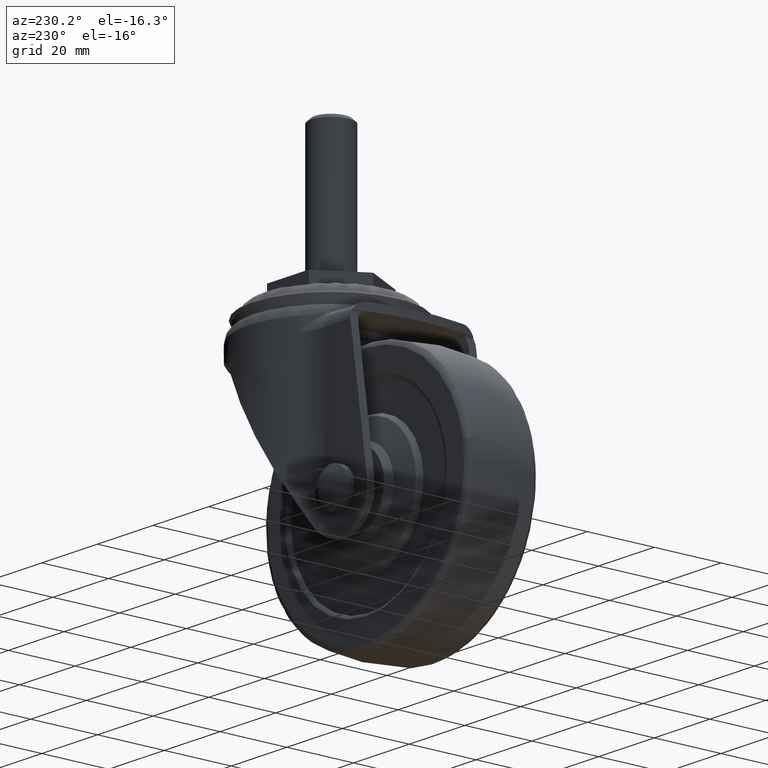
[diagram: clean part render]
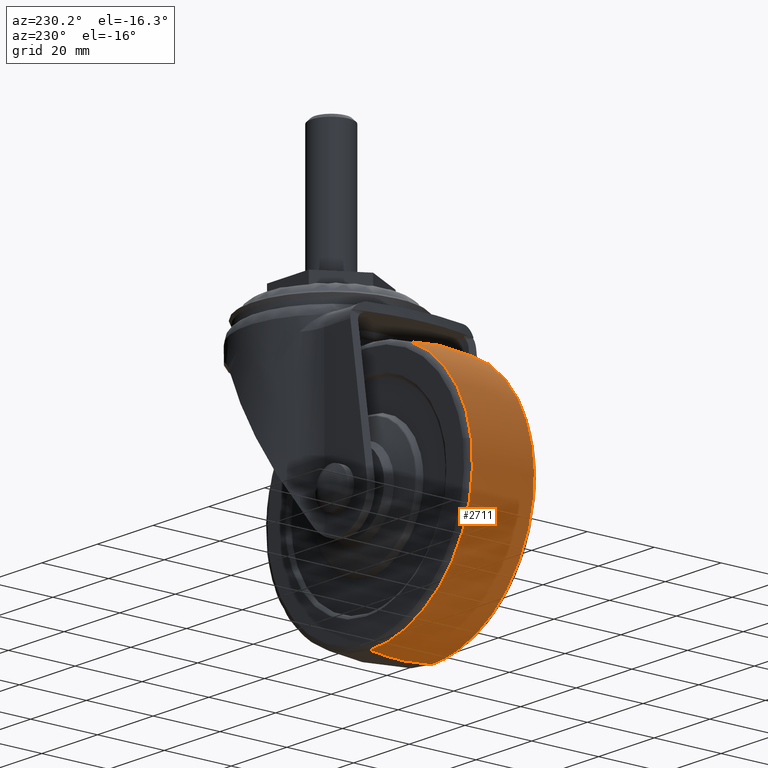
[diagram: same view with one face highlighted and labeled with its STEP entity id]
A machine part, auxiliary view. The second image highlights one B-rep face of the part: STEP entity #2711.
In plain terms, the highlighted face is a freeform B-spline surface patch.
Its self-contained STEP definition (entity closure, byte-faithful):
#2379=CARTESIAN_POINT('',(-61.434806249780827,-9.230763420443569,-54.568675097718327));
#2380=VERTEX_POINT('',#2379);
#2391=CARTESIAN_POINT('',(-25.0,-9.230763351864182,-86.285654018669007));
#2392=VERTEX_POINT('',#2391);
#2393=CARTESIAN_POINT('',(-61.434806249780827,-9.230763420443569,-54.568675097718327));
#2394=CARTESIAN_POINT('',(-61.066558056080908,-9.230763417578658,-57.219319311157811));
#2395=CARTESIAN_POINT('',(-59.967253715297758,-9.230763412347150,-61.569237485760787));
#2396=CARTESIAN_POINT('',(-57.705242909943330,-9.230763405318418,-66.511284154733161));
#2397=CARTESIAN_POINT('',(-55.582828927102383,-9.230763399754052,-70.042771539033069));
#2398=CARTESIAN_POINT('',(-53.132725579667792,-9.230763394039030,-73.359413618157362));
#2399=CARTESIAN_POINT('',(-49.702347436691163,-9.230763387034699,-76.932899054251379));
#2400=CARTESIAN_POINT('',(-45.681383052744089,-9.230763379818255,-80.055594263378140));
#2401=CARTESIAN_POINT('',(-40.984589056349492,-9.230763372246765,-82.782583618359482));
#2402=CARTESIAN_POINT('',(-36.503204389630042,-9.230763365790486,-84.560705348715942));
#2403=CARTESIAN_POINT('',(-30.969575609066720,-9.230763358583657,-85.934930057880521));
#2404=CARTESIAN_POINT('',(-27.401626426469470,-9.230763354435826,-86.285967735997033));
#2405=CARTESIAN_POINT('',(-25.0,-9.230763351864182,-86.285654018669007));
#2406=B_SPLINE_CURVE_WITH_KNOTS('',3,(#2393,#2394,#2395,#2396,#2397,#2398,#2399,#2400,#2401,#2402,#2403,#2404,#2405),.UNSPECIFIED.,.F.,.U.,(4,1,1,1,1,1,1,1,1,1,4),(0.000000052981221,8.028191636714098,13.380353692767510,16.262282188954980,20.379314419132140,25.731476932709811,31.083556725654539,35.612317630468482,41.993725724533853,45.493205887227973,52.698006034466090),.UNSPECIFIED.);
#2407=EDGE_CURVE('',#2380,#2392,#2406,.T.);
#2477=CARTESIAN_POINT('',(-25.0,-9.230763351852319,-12.714274538763419));
#2478=VERTEX_POINT('',#2477);
#2496=CARTESIAN_POINT('',(-25.0,-9.230763351852319,-12.714274538763419));
#2497=CARTESIAN_POINT('',(-26.637174524403051,-9.230763353180846,-12.714225470905870));
#2498=CARTESIAN_POINT('',(-30.157095759941949,-9.230763356256764,-12.949614562330989));
#2499=CARTESIAN_POINT('',(-35.857903342420023,-9.230763362017319,-14.166155541446100));
#2500=CARTESIAN_POINT('',(-41.125053841733930,-9.230763368256227,-16.273228854026009));
#2501=CARTESIAN_POINT('',(-45.571955354403137,-9.230763374317153,-18.903340478526658));
#2502=CARTESIAN_POINT('',(-48.637614891250962,-9.230763378982088,-21.238244195400519));
#2503=CARTESIAN_POINT('',(-51.340808511290767,-9.230763383512741,-23.744974196551588));
#2504=CARTESIAN_POINT('',(-54.401111016135232,-9.230763389187054,-27.166779111185068));
#2505=CARTESIAN_POINT('',(-57.432694475577897,-9.230763395934721,-31.766042698238390));
#2506=CARTESIAN_POINT('',(-59.604965298729127,-9.230763402326828,-36.730235279955082));
#2507=CARTESIAN_POINT('',(-61.037061371883432,-9.230763408034415,-41.605913113921517));
#2508=CARTESIAN_POINT('',(-61.940352142548633,-9.230763414138558,-47.366168512796662));
#2509=CARTESIAN_POINT('',(-61.796127475761359,-9.230763418317473,-51.974215540793402));
#2510=CARTESIAN_POINT('',(-61.434806249780827,-9.230763420443569,-54.568675097718327));
#2511=B_SPLINE_CURVE_WITH_KNOTS('',3,(#2496,#2497,#2498,#2499,#2500,#2501,#2502,#2503,#2504,#2505,#2506,#2507,#2508,#2509,#2510),.UNSPECIFIED.,.F.,.U.,(4,1,1,1,1,1,1,1,1,1,1,1,4),(0.000000047486211,4.911534404475411,10.559816091448219,17.436007203352201,21.856416106861811,26.031221011822112,28.978186368435669,32.907346866115439,39.783548789364993,45.431825931511291,49.115494490843730,55.009378928081283,62.867831224666730),.UNSPECIFIED.);
#2512=EDGE_CURVE('',#2478,#2380,#2511,.T.);
#2561=CARTESIAN_POINT('',(-25.0,9.230742634601860,-86.285657244330764));
#2562=VERTEX_POINT('',#2561);
#2563=CARTESIAN_POINT('',(-25.0,-9.230763351864182,-86.285654018669007));
#2564=CARTESIAN_POINT('',(-24.999999999999972,-6.273756534309167,-86.746244877910271));
#2565=CARTESIAN_POINT('',(-25.000000000000071,-0.097700543940877,-87.238805364168613));
#2566=CARTESIAN_POINT('',(-24.999999999999989,6.082969964540927,-86.775998838194539));
#2567=CARTESIAN_POINT('',(-25.0,9.230742634601860,-86.285657244330764));
#2568=B_SPLINE_CURVE_WITH_KNOTS('',3,(#2563,#2564,#2565,#2566,#2567),.UNSPECIFIED.,.F.,.U.,(4,1,4),(1.987228E-009,8.977964132629275,18.535136944959280),.UNSPECIFIED.);
#2569=EDGE_CURVE('',#2392,#2562,#2568,.T.);
#2590=CARTESIAN_POINT('',(-25.0,9.230742634547582,-12.714271313095070));
#2591=VERTEX_POINT('',#2590);
#2612=CARTESIAN_POINT('',(-25.0,-9.230763351852319,-12.714274538763419));
#2613=CARTESIAN_POINT('',(-25.000000000000011,-5.892220371566760,-12.194166089081950));
#2614=CARTESIAN_POINT('',(-25.000000000000021,0.293058294882455,-11.761106902123011));
#2615=CARTESIAN_POINT('',(-24.999999999999950,6.464505866316229,-12.283462166074109));
#2616=CARTESIAN_POINT('',(-25.0,9.230742634547582,-12.714271313095070));
#2617=B_SPLINE_CURVE_WITH_KNOTS('',3,(#2612,#2613,#2614,#2615,#2616),.UNSPECIFIED.,.F.,.U.,(4,1,4),(1.985622E-009,10.136394978925180,18.535136944892351),.UNSPECIFIED.);
#2618=EDGE_CURVE('',#2478,#2591,#2617,.T.);
#2625=CARTESIAN_POINT('',(-23.975864831887243,-10.163918936312214,-12.867107491174105));
#2626=CARTESIAN_POINT('',(-23.951622336555303,-5.118949990986023,-11.999964278717140));
#2627=CARTESIAN_POINT('',(-23.951622336555307,5.694446E-015,-11.999964278717135));
#2628=CARTESIAN_POINT('',(-23.951622336555310,5.118941571733993,-11.999964278717137));
#2629=CARTESIAN_POINT('',(-23.975864752719204,10.163902461083874,-12.867104659368664));
#2630=CARTESIAN_POINT('',(-24.484950262534955,-10.163918936312216,-12.867107491174110));
#2631=CARTESIAN_POINT('',(-24.472758423757245,-5.118949990986023,-11.999964278717144));
#2632=CARTESIAN_POINT('',(-24.472758423757245,5.694446E-015,-11.999964278717142));
#2633=CARTESIAN_POINT('',(-24.472758423757242,5.118941571733992,-11.999964278717133));
#2634=CARTESIAN_POINT('',(-24.484950222720403,10.163902461083875,-12.867104659368668));
#2635=CARTESIAN_POINT('',(-61.632856787543027,-10.163918936312212,-12.867107491174110));
#2636=CARTESIAN_POINT('',(-62.499999999999993,-5.118949990986022,-11.999964278717142));
#2637=CARTESIAN_POINT('',(-62.500000000000000,5.694446E-015,-11.999964278717139));
#2638=CARTESIAN_POINT('',(-62.500000000000007,5.118941571733994,-11.999964278717144));
#2639=CARTESIAN_POINT('',(-61.632859619348466,10.163902461083874,-12.867104659368668));
#2640=CARTESIAN_POINT('',(-61.632856787543034,-10.163918936312214,-49.499964278717130));
#2641=CARTESIAN_POINT('',(-62.499999999999993,-5.118949990986023,-49.499964278717137));
#2642=CARTESIAN_POINT('',(-62.500000000000000,5.694446E-015,-49.499964278717137));
#2643=CARTESIAN_POINT('',(-62.499999999999993,5.118941571733994,-49.499964278717137));
#2644=CARTESIAN_POINT('',(-61.632859619348466,10.163902461083875,-49.499964278717144));
#2645=CARTESIAN_POINT('',(-61.632856787543027,-10.163918936312212,-86.132821066260178));
#2646=CARTESIAN_POINT('',(-62.499999999999993,-5.118949990986022,-86.999964278717144));
#2647=CARTESIAN_POINT('',(-62.500000000000000,5.694446E-015,-86.999964278717158));
#2648=CARTESIAN_POINT('',(-62.500000000000007,5.118941571733994,-86.999964278717158));
#2649=CARTESIAN_POINT('',(-61.632859619348466,10.163902461083874,-86.132823898065610));
#2650=CARTESIAN_POINT('',(-24.484950262534955,-10.163918936312216,-86.132821066260163));
#2651=CARTESIAN_POINT('',(-24.472758423757249,-5.118949990986024,-86.999964278717130));
#2652=CARTESIAN_POINT('',(-24.472758423757256,5.694446E-015,-86.999964278717130));
#2653=CARTESIAN_POINT('',(-24.472758423757256,5.118941571733993,-86.999964278717130));
#2654=CARTESIAN_POINT('',(-24.484950222720418,10.163902461083875,-86.132823898065610));
#2655=CARTESIAN_POINT('',(-23.975864831887261,-10.163918936312214,-86.132821066260178));
#2656=CARTESIAN_POINT('',(-23.951622336555317,-5.118949990986023,-86.999964278717130));
#2657=CARTESIAN_POINT('',(-23.951622336555324,5.694446E-015,-86.999964278717130));
#2658=CARTESIAN_POINT('',(-23.951622336555324,5.118941571733993,-86.999964278717130));
#2659=CARTESIAN_POINT('',(-23.975864752719222,10.163902461083875,-86.132823898065595));
#2667=(BOUNDED_SURFACE()B_SPLINE_SURFACE(2,2,((#2625,#2630,#2635,#2640,#2645,#2650,#2655),(#2626,#2631,#2636,#2641,#2646,#2651,#2656),(#2627,#2632,#2637,#2642,#2647,#2652,#2657),(#2628,#2633,#2638,#2643,#2648,#2653,#2658),(#2629,#2634,#2639,#2644,#2649,#2654,#2659)),.UNSPECIFIED.,.F.,.F.,.U.)B_SPLINE_SURFACE_WITH_KNOTS((3,2,3),(3,1,2,1,3),(0.0,10.428930635673550,20.857844554520611),(0.0,1.242640687119295,63.374675043083549,125.506709399047810,126.749350086167100),.UNSPECIFIED.)GEOMETRIC_REPRESENTATION_ITEM()RATIONAL_B_SPLINE_SURFACE(((0.967945754012498,0.962341319101140,0.676515138621883,0.956736884189782,0.676515138621883,0.962341319101140,0.967945754012498),(0.986006812477828,0.980297803496921,0.689138345470697,0.974588794516015,0.689138345470697,0.980297803496921,0.986006812477827),(1.011715728752538,1.005857864376269,0.707106781186548,1.0,0.707106781186548,1.005857864376269,1.011715728752538),(0.986006853687373,0.980297844467862,0.689138374272808,0.974588835248351,0.689138374272808,0.980297844467862,0.986006853687373),(0.967945811913676,0.962341376667068,0.676515179090084,0.956736941420461,0.676515179090084,0.962341376667068,0.967945811913675)))REPRESENTATION_ITEM('')SURFACE());
#2668=ORIENTED_EDGE('',*,*,#2569,.F.);
#2669=ORIENTED_EDGE('',*,*,#2407,.F.);
#2670=ORIENTED_EDGE('',*,*,#2512,.F.);
#2671=ORIENTED_EDGE('',*,*,#2618,.T.);
#2672=CARTESIAN_POINT('',(-61.295924161016814,9.230742941098079,-43.517243790645423));
#2673=VERTEX_POINT('',#2672);
#2674=CARTESIAN_POINT('',(-25.0,9.230742634547582,-12.714271313095070));
#2675=CARTESIAN_POINT('',(-27.426914641848420,9.230742646460660,-12.713898528036189));
#2676=CARTESIAN_POINT('',(-31.067075502196630,9.230742665840207,-13.075931435792290));
#2677=CARTESIAN_POINT('',(-36.236918158753447,9.230742696662304,-14.381710037521330));
#2678=CARTESIAN_POINT('',(-39.960206656537657,9.230742720880649,-15.807024000730831));
#2679=CARTESIAN_POINT('',(-43.554525045063329,9.230742746292703,-17.670629494666649));
#2680=CARTESIAN_POINT('',(-47.181349573419091,9.230742773880897,-20.018290699825560));
#2681=CARTESIAN_POINT('',(-50.576443306298103,9.230742802622885,-22.915753675803380));
#2682=CARTESIAN_POINT('',(-53.835755843469421,9.230742833645310,-26.520434025883208));
#2683=CARTESIAN_POINT('',(-56.337746926412123,9.230742860627727,-30.047855774541478));
#2684=CARTESIAN_POINT('',(-58.246159844227563,9.230742884889956,-33.621796472488448));
#2685=CARTESIAN_POINT('',(-60.060276716039773,9.230742911965262,-37.981892643495819));
#2686=CARTESIAN_POINT('',(-60.912496927414701,9.230742929514072,-41.189118427144159));
#2687=CARTESIAN_POINT('',(-61.295924161016814,9.230742941098079,-43.517243790645423));
#2688=B_SPLINE_CURVE_WITH_KNOTS('',3,(#2674,#2675,#2676,#2677,#2678,#2679,#2680,#2681,#2682,#2683,#2684,#2685,#2686,#2687),.UNSPECIFIED.,.F.,.U.,(4,1,1,1,1,1,1,1,1,1,1,4),(0.000000052521422,7.280645529641070,10.920960842727840,15.976982407827760,19.212830355595319,23.055391741550299,28.920305038452110,32.560655328307440,37.616665114924011,41.863719832028529,44.695098567019102,51.773480724673547),.UNSPECIFIED.);
#2689=EDGE_CURVE('',#2591,#2673,#2688,.T.);
#2690=ORIENTED_EDGE('',*,*,#2689,.T.);
#2691=CARTESIAN_POINT('',(-61.295924161016814,9.230742941098079,-43.517243790645423));
#2692=CARTESIAN_POINT('',(-61.728731923528883,9.230742931703695,-46.139821621512262));
#2693=CARTESIAN_POINT('',(-61.971144930983037,9.230742914142185,-50.561344602555600));
#2694=CARTESIAN_POINT('',(-61.174749822637153,9.230742884822609,-56.923760373845312));
#2695=CARTESIAN_POINT('',(-59.761943200134532,9.230742859123657,-61.893798321857737));
#2696=CARTESIAN_POINT('',(-57.812563336342052,9.230742833841982,-66.308182457756189));
#2697=CARTESIAN_POINT('',(-55.369078559492799,9.230742807867861,-70.469451008724334));
#2698=CARTESIAN_POINT('',(-52.471578928183618,9.230742782382750,-74.127878573782112));
#2699=CARTESIAN_POINT('',(-48.885029398395147,9.230742755247588,-77.597609138266222));
#2700=CARTESIAN_POINT('',(-45.496237153885289,9.230742732601936,-80.157390676968163));
#2701=CARTESIAN_POINT('',(-41.825741144279611,9.230742710768094,-82.283275451552768));
#2702=CARTESIAN_POINT('',(-37.731122442345942,9.230742688603080,-84.128559554135407));
#2703=CARTESIAN_POINT('',(-32.143272164569389,9.230742661866014,-85.803990483584869));
#2704=CARTESIAN_POINT('',(-27.574958149913261,9.230742643704931,-86.286047719887137));
#2705=CARTESIAN_POINT('',(-25.0,9.230742634601860,-86.285657244330764));
#2706=B_SPLINE_CURVE_WITH_KNOTS('',3,(#2691,#2692,#2693,#2694,#2695,#2696,#2697,#2698,#2699,#2700,#2701,#2702,#2703,#2704,#2705),.UNSPECIFIED.,.F.,.U.,(4,1,1,1,1,1,1,1,1,1,1,1,4),(0.000000042187494,7.974015631830881,13.207004272368330,19.187557693327260,23.423784870024559,27.659974118803479,33.640474566527551,37.378310618308902,42.611293544623130,46.349139503072543,50.086980723865317,56.067540041560463,63.792365178012538),.UNSPECIFIED.);
#2707=EDGE_CURVE('',#2673,#2562,#2706,.T.);
#2708=ORIENTED_EDGE('',*,*,#2707,.T.);
#2709=EDGE_LOOP('',(#2668,#2669,#2670,#2671,#2690,#2708));
#2710=FACE_OUTER_BOUND('',#2709,.T.);
#2711=ADVANCED_FACE('',(#2710),#2667,.T.);